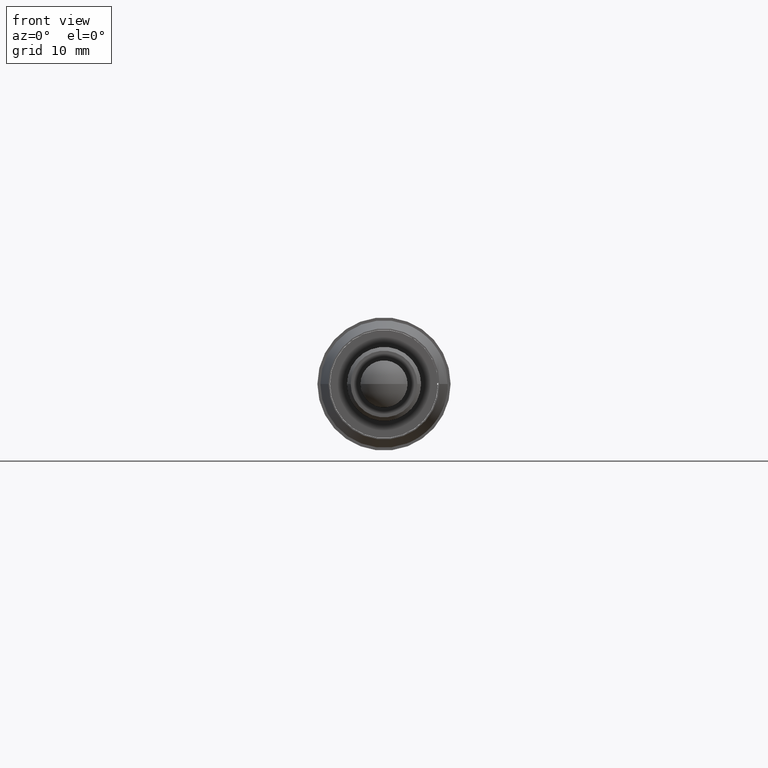
[diagram: clean part render]
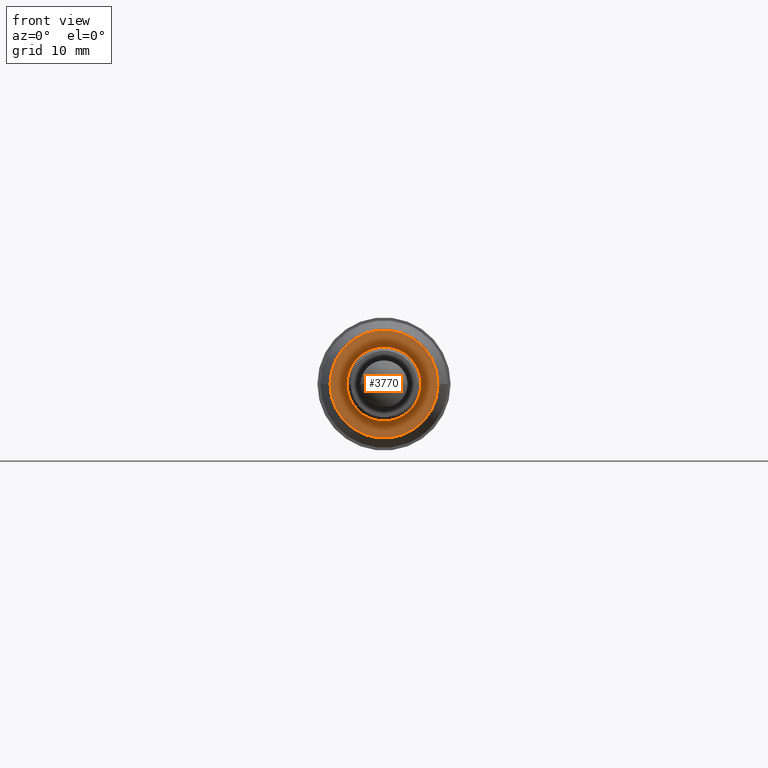
[diagram: same view with one face highlighted and labeled with its STEP entity id]
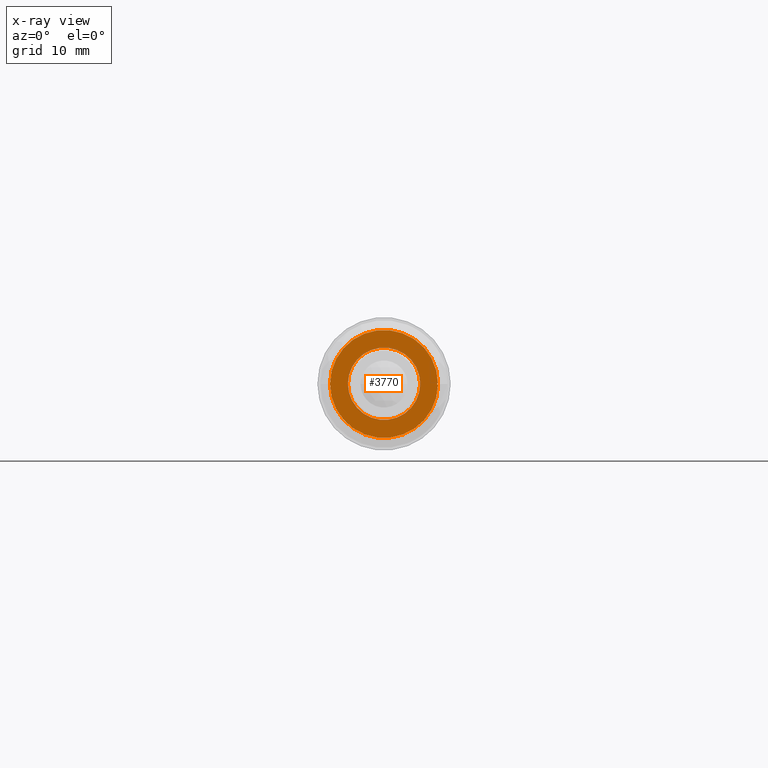
[diagram: x-ray of the same camera — body ghosted, the highlighted face saturated]
A machine part, front view. The second image highlights one B-rep face of the part: STEP entity #3770.
The next image is the same camera in x-ray: the body ghosted, the highlighted face saturated — about 4% of this face is hidden behind the body in this view.
In plain terms, the highlighted planar face has unit normal (0, -1, 0).
Its self-contained STEP definition (entity closure, byte-faithful):
#402 = VERTEX_POINT ( 'NONE', #2072 ) ;
#542 = DIRECTION ( 'NONE',  ( 1.058937486943297600E-016, -1.000000000000000000, 0.0000000000000000000 ) ) ;
#1348 = EDGE_CURVE ( 'NONE', #2701, #9242, #4990, .T. ) ;
#1535 = LINE ( 'NONE', #6590, #6001 ) ;
#1538 = CARTESIAN_POINT ( 'NONE',  ( 31.44783534030352700, 19.82957255388083000, 23.47757420670093300 ) ) ;
#1590 = AXIS2_PLACEMENT_3D ( 'NONE', #1538, #7375, #2359 ) ;
#1876 = AXIS2_PLACEMENT_3D ( 'NONE', #4445, #10271, #5274 ) ;
#2072 = CARTESIAN_POINT ( 'NONE',  ( 38.64783534030353000, 19.82957255388083300, 23.57757420670093400 ) ) ;
#2359 = DIRECTION ( 'NONE',  ( -1.000000000000000000, 0.0000000000000000000, 0.0000000000000000000 ) ) ;
#2646 = PLANE ( 'NONE',  #6200 ) ;
#2701 = VERTEX_POINT ( 'NONE', #4537 ) ;
#2746 = VECTOR ( 'NONE', #5008, 1000.000000000000000 ) ;
#2883 = ORIENTED_EDGE ( 'NONE', *, *, #6748, .F. ) ;
#3345 = CARTESIAN_POINT ( 'NONE',  ( 36.32283534030352700, 19.82957255388083000, 23.47757420670093300 ) ) ;
#3471 = DIRECTION ( 'NONE',  ( -1.058937486943297600E-016, 1.000000000000000000, -0.0000000000000000000 ) ) ;
#3596 = LINE ( 'NONE', #9459, #5282 ) ;
#3770 = ADVANCED_FACE ( 'NONE', ( #4521, #8929 ), #2646, .T. ) ;
#3982 = VERTEX_POINT ( 'NONE', #4242 ) ;
#4050 = ORIENTED_EDGE ( 'NONE', *, *, #9754, .F. ) ;
#4242 = CARTESIAN_POINT ( 'NONE',  ( 24.14783534030352600, 19.82957255388083000, 23.47757420670093300 ) ) ;
#4445 = CARTESIAN_POINT ( 'NONE',  ( 31.44783534030352700, 19.82957255388083000, 23.47757420670093300 ) ) ;
#4489 = DIRECTION ( 'NONE',  ( -1.058937486943297600E-016, 1.000000000000000000, -0.0000000000000000000 ) ) ;
#4521 = FACE_OUTER_BOUND ( 'NONE', #10498, .T. ) ;
#4536 = CARTESIAN_POINT ( 'NONE',  ( 38.74715037666138800, 19.82957255388083000, 23.37757420670093100 ) ) ;
#4537 = CARTESIAN_POINT ( 'NONE',  ( 38.64783534030353000, 19.82957255388083000, 23.37757420670093100 ) ) ;
#4642 = VERTEX_POINT ( 'NONE', #7286 ) ;
#4848 = ORIENTED_EDGE ( 'NONE', *, *, #8761, .T. ) ;
#4990 = LINE ( 'NONE', #8434, #2746 ) ;
#5008 = DIRECTION ( 'NONE',  ( 1.000000000000000000, -0.0000000000000000000, 1.224646799147353200E-016 ) ) ;
#5219 = EDGE_CURVE ( 'NONE', #402, #4642, #3596, .T. ) ;
#5274 = DIRECTION ( 'NONE',  ( -1.000000000000000000, 0.0000000000000000000, 0.0000000000000000000 ) ) ;
#5282 = VECTOR ( 'NONE', #10379, 1000.000000000000000 ) ;
#5375 = ORIENTED_EDGE ( 'NONE', *, *, #8502, .T. ) ;
#5394 = AXIS2_PLACEMENT_3D ( 'NONE', #8456, #3471, #9290 ) ;
#5544 = CARTESIAN_POINT ( 'NONE',  ( 24.14783534030352600, 19.82957255388083000, 23.47757420670093300 ) ) ;
#5814 = CIRCLE ( 'NONE', #1876, 7.300000000000000700 ) ;
#6001 = VECTOR ( 'NONE', #7435, 1000.000000000000000 ) ;
#6169 = CIRCLE ( 'NONE', #10161, 7.300000000000000700 ) ;
#6200 = AXIS2_PLACEMENT_3D ( 'NONE', #5544, #542, #6363 ) ;
#6363 = DIRECTION ( 'NONE',  ( 1.000000000000000000, 1.058937486943297600E-016, 0.0000000000000000000 ) ) ;
#6565 = CIRCLE ( 'NONE', #1590, 4.874999999999997300 ) ;
#6590 = CARTESIAN_POINT ( 'NONE',  ( 38.64783534030353000, 19.82957255388083000, 23.57757420670093000 ) ) ;
#6748 = EDGE_CURVE ( 'NONE', #402, #2701, #1535, .T. ) ;
#6827 = CARTESIAN_POINT ( 'NONE',  ( 26.57283534030353100, 19.82957255388083000, 23.47757420670093300 ) ) ;
#7086 = EDGE_LOOP ( 'NONE', ( #4848, #5375 ) ) ;
#7286 = CARTESIAN_POINT ( 'NONE',  ( 38.74715037666138800, 19.82957255388083000, 23.57757420670093000 ) ) ;
#7375 = DIRECTION ( 'NONE',  ( -1.058937486943297600E-016, 1.000000000000000000, -0.0000000000000000000 ) ) ;
#7435 = DIRECTION ( 'NONE',  ( 0.0000000000000000000, 0.0000000000000000000, -1.000000000000000000 ) ) ;
#7585 = EDGE_CURVE ( 'NONE', #9242, #3982, #5814, .T. ) ;
#8434 = CARTESIAN_POINT ( 'NONE',  ( 38.64783534030353000, 19.82957255388083000, 23.37757420670093100 ) ) ;
#8456 = CARTESIAN_POINT ( 'NONE',  ( 31.44783534030352700, 19.82957255388083000, 23.47757420670093300 ) ) ;
#8502 = EDGE_CURVE ( 'NONE', #10687, #10044, #9061, .T. ) ;
#8761 = EDGE_CURVE ( 'NONE', #10044, #10687, #6565, .T. ) ;
#8796 = ORIENTED_EDGE ( 'NONE', *, *, #7585, .F. ) ;
#8929 = FACE_BOUND ( 'NONE', #7086, .T. ) ;
#9061 = CIRCLE ( 'NONE', #5394, 4.874999999999997300 ) ;
#9242 = VERTEX_POINT ( 'NONE', #4536 ) ;
#9249 = ORIENTED_EDGE ( 'NONE', *, *, #1348, .F. ) ;
#9290 = DIRECTION ( 'NONE',  ( -1.000000000000000000, 0.0000000000000000000, 0.0000000000000000000 ) ) ;
#9459 = CARTESIAN_POINT ( 'NONE',  ( 38.64783534030353000, 19.82957255388083000, 23.57757420670093000 ) ) ;
#9465 = CARTESIAN_POINT ( 'NONE',  ( 31.44783534030352700, 19.82957255388083000, 23.47757420670093300 ) ) ;
#9754 = EDGE_CURVE ( 'NONE', #3982, #4642, #6169, .T. ) ;
#10044 = VERTEX_POINT ( 'NONE', #6827 ) ;
#10113 = ORIENTED_EDGE ( 'NONE', *, *, #5219, .T. ) ;
#10161 = AXIS2_PLACEMENT_3D ( 'NONE', #9465, #4489, #10311 ) ;
#10271 = DIRECTION ( 'NONE',  ( -1.058937486943297600E-016, 1.000000000000000000, -0.0000000000000000000 ) ) ;
#10311 = DIRECTION ( 'NONE',  ( -1.000000000000000000, 0.0000000000000000000, 0.0000000000000000000 ) ) ;
#10379 = DIRECTION ( 'NONE',  ( 1.000000000000000000, -0.0000000000000000000, 1.224646799147353200E-016 ) ) ;
#10498 = EDGE_LOOP ( 'NONE', ( #9249, #2883, #10113, #4050, #8796 ) ) ;
#10687 = VERTEX_POINT ( 'NONE', #3345 ) ;